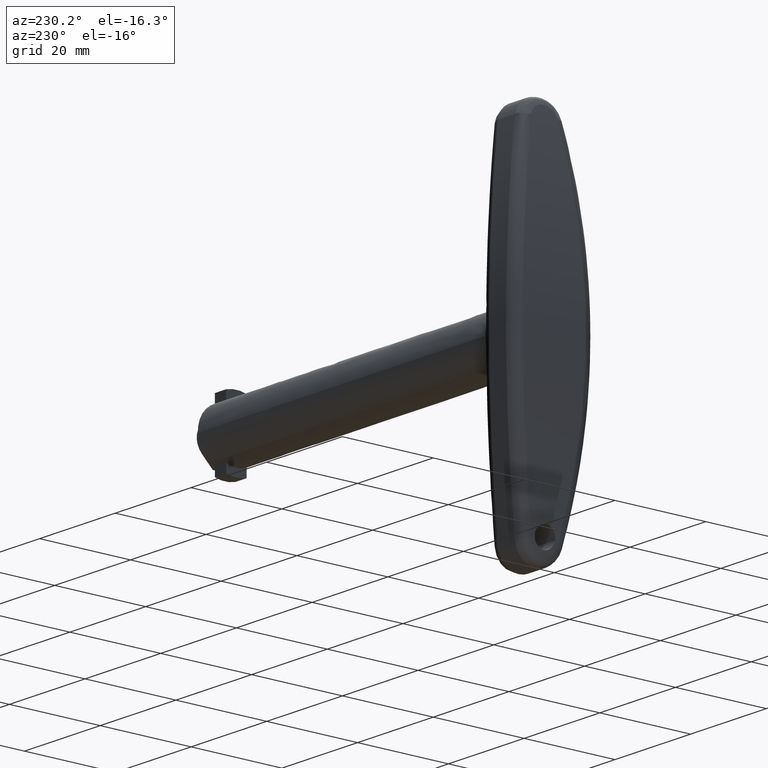
[diagram: clean part render]
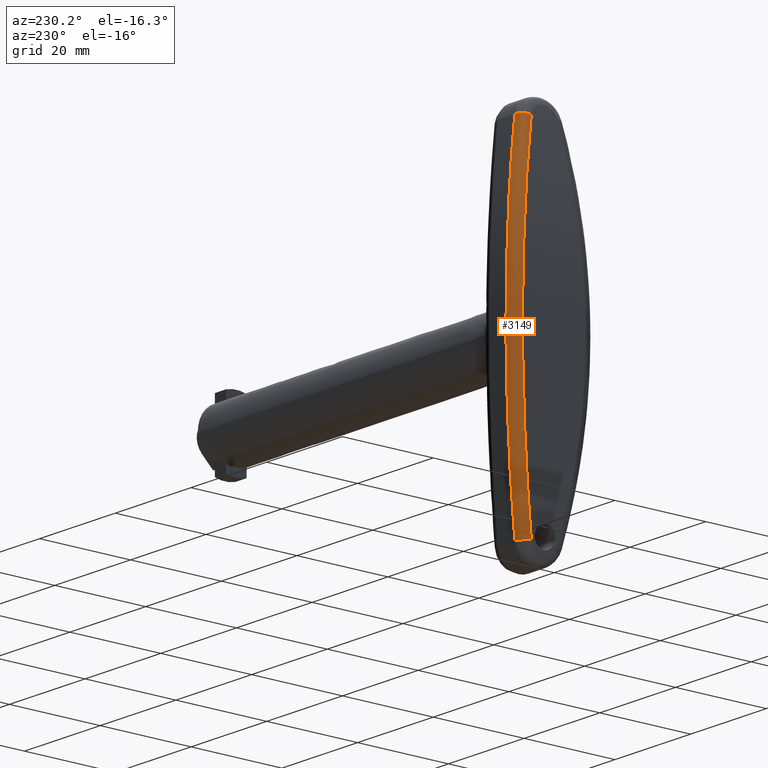
[diagram: same view with one face highlighted and labeled with its STEP entity id]
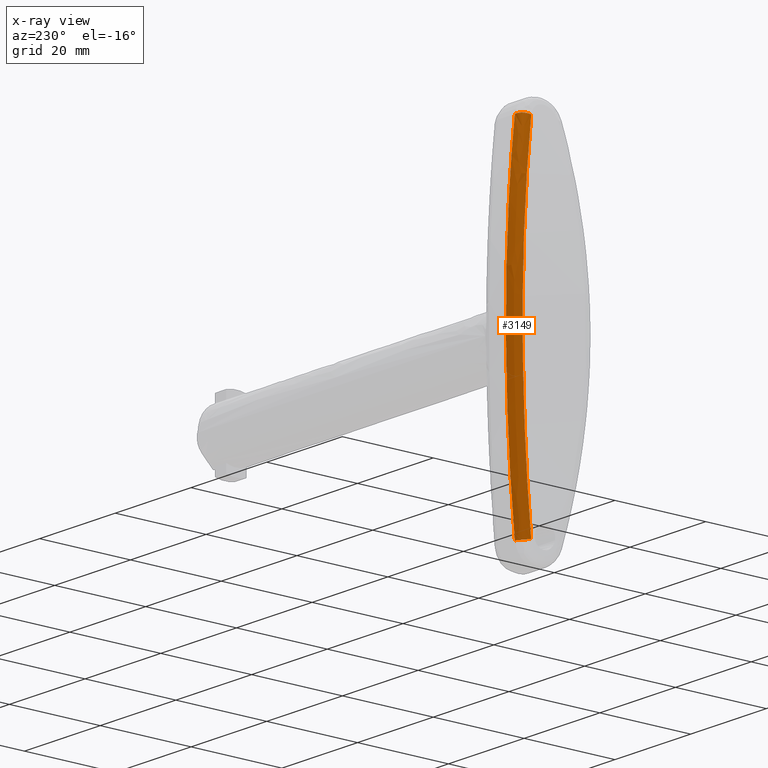
[diagram: x-ray of the same camera — body ghosted, the highlighted face saturated]
A machine part, auxiliary view. The second image highlights one B-rep face of the part: STEP entity #3149.
The next image is the same camera in x-ray: the body ghosted, the highlighted face saturated — about 0% of this face is hidden behind the body in this view.
In plain terms, the highlighted face is a freeform B-spline surface patch.
Its self-contained STEP definition (entity closure, byte-faithful):
#2861=CARTESIAN_POINT('',(4.587307242569950,4.881327646949760,37.582885221583453));
#2862=VERTEX_POINT('',#2861);
#2913=CARTESIAN_POINT('',(2.606615505575070,2.928796588169860,37.426967932449699));
#2914=VERTEX_POINT('',#2913);
#2915=CARTESIAN_POINT('',(4.587307242569950,4.881327646949760,37.582885221583453));
#2916=CARTESIAN_POINT('',(2.664345813842070,4.824418124977975,37.839416585605022));
#2917=CARTESIAN_POINT('',(2.606615505575072,2.928796588169860,37.426967932449713));
#2925=(BOUNDED_CURVE()B_SPLINE_CURVE(2,(#2915,#2916,#2917),.UNSPECIFIED.,.F.,.U.)CURVE()GEOMETRIC_REPRESENTATION_ITEM()QUASI_UNIFORM_CURVE()RATIONAL_B_SPLINE_CURVE((1.0,0.717642516614692,1.0))REPRESENTATION_ITEM(''));
#2926=EDGE_CURVE('',#2862,#2914,#2925,.T.);
#2978=CARTESIAN_POINT('',(4.652311613057488,4.799624579256895,37.951197514785285));
#2979=CARTESIAN_POINT('',(4.635242034576322,4.826995066125379,37.827813112052780));
#2980=CARTESIAN_POINT('',(4.618172479534791,4.854365515409208,37.704428878749461));
#2981=CARTESIAN_POINT('',(3.747656233165555,6.250208624033180,31.412057497362639));
#2982=CARTESIAN_POINT('',(3.103260004991765,7.274182097406575,25.207148228505790));
#2983=CARTESIAN_POINT('',(2.238136571341725,8.646523935799412,12.726564861934762));
#2984=CARTESIAN_POINT('',(2.017368855022051,8.994890352673151,6.450831157284289));
#2985=CARTESIAN_POINT('',(2.012572748579339,9.002471379775628,-3.016992063785608));
#2986=CARTESIAN_POINT('',(2.065416614371321,8.918981936989443,-6.181986466148960));
#2987=CARTESIAN_POINT('',(2.227924277603583,8.661891127516983,-10.943349134112296));
#2988=CARTESIAN_POINT('',(2.296095396623689,8.554007546745510,-12.534727801444001));
#2989=CARTESIAN_POINT('',(2.459572538617826,8.295097259865724,-15.706033040972773));
#2990=CARTESIAN_POINT('',(2.554889541437770,8.144053255578459,-17.287302298935526));
#2991=CARTESIAN_POINT('',(3.098462239395269,7.281819261120778,-25.171950891692966));
#2992=CARTESIAN_POINT('',(3.747432281090680,6.250567729685582,-31.410438672643963));
#2993=CARTESIAN_POINT('',(4.618176958865976,4.854358332831539,-37.704461257338210));
#2994=CARTESIAN_POINT('',(4.635250993250152,4.826980700951782,-37.827877869312701));
#2995=CARTESIAN_POINT('',(4.652325051085327,4.799603031469140,-37.951294650798566));
#2996=CARTESIAN_POINT('',(4.645425838062840,4.799418379735969,37.952117551224013));
#2997=CARTESIAN_POINT('',(4.628355495068346,4.826789630493118,37.828732855203377));
#2998=CARTESIAN_POINT('',(4.611285163810758,4.854160862430862,37.705348244017259));
#2999=CARTESIAN_POINT('',(3.740713813446260,6.250068767767632,31.412845424147346));
#3000=CARTESIAN_POINT('',(3.096274805918793,7.274093741255227,25.207789481064424));
#3001=CARTESIAN_POINT('',(2.231094019430847,8.646505226386662,12.726896435784543));
#3002=CARTESIAN_POINT('',(2.010311305135466,8.994890086618135,6.450999093089136));
#3003=CARTESIAN_POINT('',(2.005514877093845,9.002471508454637,-3.017070603525197));
#3004=CARTESIAN_POINT('',(2.058362298968784,8.918977698337592,-6.182147468346830));
#3005=CARTESIAN_POINT('',(2.220880823053342,8.661873589707660,-10.943632627893605));
#3006=CARTESIAN_POINT('',(2.289056498005817,8.553984437865077,-12.535052012540323));
#3007=CARTESIAN_POINT('',(2.452544532619866,8.295060859688997,-15.706437658965381));
#3008=CARTESIAN_POINT('',(2.547867878358809,8.144009130164712,-17.287746653302509));
#3009=CARTESIAN_POINT('',(3.091476727026985,7.281731281926152,-25.172591359259261));
#3010=CARTESIAN_POINT('',(3.740489848299369,6.250427886291674,-31.411226582448514));
#3011=CARTESIAN_POINT('',(4.611289643258675,4.854153679827812,-37.705380621899572));
#3012=CARTESIAN_POINT('',(4.628364453969956,4.826775265277846,-37.828797611009321));
#3013=CARTESIAN_POINT('',(4.645439276423836,4.799396831899354,-37.952214684994765));
#3014=CARTESIAN_POINT('',(2.716766942400779,4.741663291800003,38.209813520554462));
#3015=CARTESIAN_POINT('',(2.699296576805291,4.769242957293259,38.086371503052462));
#3016=CARTESIAN_POINT('',(2.681822867605746,4.796827901181001,37.962905860330480));
#3017=CARTESIAN_POINT('',(1.786207463194877,6.210694893789169,31.634671237988425));
#3018=CARTESIAN_POINT('',(1.122401675292000,7.249126115959605,25.388994223009870));
#3019=CARTESIAN_POINT('',(0.230980640977665,8.641191677092198,12.821064757337876));
#3020=CARTESIAN_POINT('',(0.003332552328011,8.994814427674740,6.498755552140924));
#3021=CARTESIAN_POINT('',(-0.001611853389848,9.002508102360505,-3.039405837463869));
#3022=CARTESIAN_POINT('',(0.052869656236445,8.917772679194394,-6.227919269700160));
#3023=CARTESIAN_POINT('',(0.220381294889716,8.656892457362501,-11.024151238708820));
#3024=CARTESIAN_POINT('',(0.290648232075790,8.547423613484439,-12.627098534300913));
#3025=CARTESIAN_POINT('',(0.459132554195320,8.284736373863954,-15.821202836082387));
#3026=CARTESIAN_POINT('',(0.557361262090193,8.131500422892254,-17.413712581526596));
#3027=CARTESIAN_POINT('',(1.117460479568848,7.256869489335164,-25.353579283285846));
#3028=CARTESIAN_POINT('',(1.785977712123297,6.211057593660978,-31.633047854826650));
#3029=CARTESIAN_POINT('',(2.681827421128625,4.796820712695553,-37.962938034772947));
#3030=CARTESIAN_POINT('',(2.699305682235571,4.769228582872757,-38.086435840522341));
#3031=CARTESIAN_POINT('',(2.716780598123569,4.741641733993813,-38.209910009641241));
#3032=CARTESIAN_POINT('',(2.658000349492033,2.840811807570274,37.794096851313867));
#3033=CARTESIAN_POINT('',(2.640802834466876,2.867867129816661,37.671225911350440));
#3034=CARTESIAN_POINT('',(2.623605331282516,2.894922433434966,37.548355055985830));
#3035=CARTESIAN_POINT('',(1.746548350273803,4.274718247825586,31.282053471112143));
#3036=CARTESIAN_POINT('',(1.097309106843715,5.286924108004865,25.102835255379397));
#3037=CARTESIAN_POINT('',(0.225683995384770,6.643496402312702,12.673908095389656));
#3038=CARTESIAN_POINT('',(0.003256893001043,6.987860716088323,6.424140529080259));
#3039=CARTESIAN_POINT('',(-0.001575259298500,6.995354643769910,-3.004509111166601));
#3040=CARTESIAN_POINT('',(0.051665772886730,6.912824399741696,-6.156408235017712));
#3041=CARTESIAN_POINT('',(0.215394763620060,6.658687454806597,-10.898068912790924));
#3042=CARTESIAN_POINT('',(0.284078227189806,6.552043428628292,-12.482862366742598));
#3043=CARTESIAN_POINT('',(0.448783974129610,6.296108059833316,-15.641043748860325));
#3044=CARTESIAN_POINT('',(0.544817326886724,6.146799617141086,-17.215768811841841));
#3045=CARTESIAN_POINT('',(1.092475287784495,5.294473499509023,-25.067783692807549));
#3046=CARTESIAN_POINT('',(1.746322717075551,4.275073215500096,-31.280441392001162));
#3047=CARTESIAN_POINT('',(2.623609844092741,2.894915333851269,-37.548387298613441));
#3048=CARTESIAN_POINT('',(2.640811860093159,2.867852930640197,-37.671290396646931));
#3049=CARTESIAN_POINT('',(2.658013887940116,2.840790508792011,-37.794193579320279));
#3050=CARTESIAN_POINT('',(2.657790248506986,2.834015926619938,37.792610590542481));
#3051=CARTESIAN_POINT('',(2.640593729122885,2.861070029296775,37.669741835305892));
#3052=CARTESIAN_POINT('',(2.623397233385553,2.888124094771778,37.546873249024976));
#3053=CARTESIAN_POINT('',(1.746407286035549,4.267832136394294,31.280799238402029));
#3054=CARTESIAN_POINT('',(1.097220185747977,5.279970608885529,25.101821187448895));
#3055=CARTESIAN_POINT('',(0.225665319702743,6.636452638276841,12.673389229065981));
#3056=CARTESIAN_POINT('',(0.003256626576786,6.980793495505952,6.423877782199909));
#3057=CARTESIAN_POINT('',(-0.001575130440903,6.988286918849730,-3.004386230446631));
#3058=CARTESIAN_POINT('',(0.051661532374517,6.905762247361286,-6.156156347311194));
#3059=CARTESIAN_POINT('',(0.215377182524920,6.651642350633283,-10.897624382265096));
#3060=CARTESIAN_POINT('',(0.284055053974275,6.545005477227575,-12.482353628034444));
#3061=CARTESIAN_POINT('',(0.448747438554856,6.289087224321227,-15.640407698720407));
#3062=CARTESIAN_POINT('',(0.544773016015862,6.139788753350900,-17.215069584631699));
#3063=CARTESIAN_POINT('',(1.092386749650214,5.287519505272764,-25.066770940590771));
#3064=CARTESIAN_POINT('',(1.746181667636203,4.268187083985048,-31.279187200849890));
#3065=CARTESIAN_POINT('',(2.623401746045790,2.888116995360080,-37.546905491864536));
#3066=CARTESIAN_POINT('',(2.640602754454915,2.861055830455303,-37.669806321067199));
#3067=CARTESIAN_POINT('',(2.657803786522277,2.833994628330649,-37.792707319307453));
#3075=(BOUNDED_SURFACE()B_SPLINE_SURFACE(3,2,((#2978,#2996,#3014,#3032,#3050),(#2979,#2997,#3015,#3033,#3051),(#2980,#2998,#3016,#3034,#3052),(#2981,#2999,#3017,#3035,#3053),(#2982,#3000,#3018,#3036,#3054),(#2983,#3001,#3019,#3037,#3055),(#2984,#3002,#3020,#3038,#3056),(#2985,#3003,#3021,#3039,#3057),(#2986,#3004,#3022,#3040,#3058),(#2987,#3005,#3023,#3041,#3059),(#2988,#3006,#3024,#3042,#3060),(#2989,#3007,#3025,#3043,#3061),(#2990,#3008,#3026,#3044,#3062),(#2991,#3009,#3027,#3045,#3063),(#2992,#3010,#3028,#3046,#3064),(#2993,#3011,#3029,#3047,#3065),(#2994,#3012,#3030,#3048,#3066),(#2995,#3013,#3031,#3049,#3067)),.UNSPECIFIED.,.F.,.F.,.U.)B_SPLINE_SURFACE_WITH_KNOTS((4,2,2,2,2,2,2,2,4),(3,1,1,3),(0.0,0.383315305182381,19.549080992706379,38.714846680230380,48.297729523992373,53.089170945873377,57.880612367754367,77.046378055278367,77.429693360461414),(0.0,0.016608008960053,3.329862333909634,3.346493491183914),.UNSPECIFIED.)GEOMETRIC_REPRESENTATION_ITEM()RATIONAL_B_SPLINE_SURFACE(((1.002828622992513,1.001414311496256,0.717848557700779,1.001416282769695,1.002832565539390),(1.002829311526478,1.001414655763239,0.717779877338702,1.001416627516518,1.002833255033037),(1.002830000060443,1.001415000030222,0.717711196976626,1.001416972263342,1.002833944526683),(1.002865115293429,1.001432557646715,0.714208498433957,1.001434554351716,1.002869108703432),(1.002891491557002,1.001445745778501,0.711577500655366,1.001447760865177,1.002895521730355),(1.002927026105323,1.001463513052662,0.708032975956748,1.001465552903441,1.002931105806881),(1.002936177776012,1.001468088888006,0.707120108780325,1.001470135116604,1.002940270233208),(1.002936376011617,1.001468188005809,0.707100335038075,1.001470234372558,1.002940468745115),(1.002934190039878,1.001467095019939,0.707318382858742,1.001469139863280,1.002938279726559),(1.002927483412481,1.001463741706240,0.707987360166095,1.001465781875718,1.002931563751436),(1.002924671652075,1.001462335826038,0.708267829587437,1.001464374035993,1.002928748071987),(1.002917938143472,1.001458969071736,0.708939488259944,1.001461002589095,1.002922005178190),(1.002914015942593,1.001457007971296,0.709330722665503,1.001459038755265,1.002918077510530),(1.002891687426897,1.001445843713448,0.711557962889714,1.001447858936627,1.002895717873253),(1.002865122952845,1.001432561476422,0.714207734417228,1.001434558186762,1.002869116373524),(1.002829999907255,1.001414999953627,0.717711212256960,1.001416972186641,1.002833944373281),(1.002829311220101,1.001414655610051,0.717779907899371,1.001416627363116,1.002833254726233),(1.002828622532948,1.001414311266474,0.717848603541782,1.001416282539592,1.002832565079185)))REPRESENTATION_ITEM('')SURFACE());
#3076=CARTESIAN_POINT('',(4.587307242569950,4.881327646949760,-37.582885221583552));
#3077=VERTEX_POINT('',#3076);
#3078=CARTESIAN_POINT('',(2.606615505575065,2.928796588169775,-37.426967932450097));
#3079=VERTEX_POINT('',#3078);
#3080=CARTESIAN_POINT('',(4.587307242569950,4.881327646949760,-37.582885221583552));
#3081=CARTESIAN_POINT('',(2.664345813842153,4.824418124977840,-37.839416585605491));
#3082=CARTESIAN_POINT('',(2.606615505575121,2.928796588169773,-37.426967932450097));
#3090=(BOUNDED_CURVE()B_SPLINE_CURVE(2,(#3080,#3081,#3082),.UNSPECIFIED.,.F.,.U.)CURVE()GEOMETRIC_REPRESENTATION_ITEM()QUASI_UNIFORM_CURVE()RATIONAL_B_SPLINE_CURVE((1.0,0.717642516614698,1.0))REPRESENTATION_ITEM(''));
#3091=EDGE_CURVE('',#3077,#3079,#3090,.T.);
#3092=ORIENTED_EDGE('',*,*,#3091,.T.);
#3093=CARTESIAN_POINT('',(2.606615505575070,2.928796588169860,37.426967932449699));
#3094=CARTESIAN_POINT('',(2.176580122496997,3.605324471513702,34.354621362961623));
#3095=CARTESIAN_POINT('',(1.799280826191051,4.196465732919731,31.273427580079890));
#3096=CARTESIAN_POINT('',(1.150657374959544,5.210447274256960,25.093505295961290));
#3097=CARTESIAN_POINT('',(0.879332395163121,5.633284748801838,21.994776625571419));
#3098=CARTESIAN_POINT('',(0.443509712617336,6.311576748829639,15.779812255855759));
#3099=CARTESIAN_POINT('',(0.279011001785348,6.567030776318722,12.663576567445510));
#3100=CARTESIAN_POINT('',(0.058070808972797,6.909979107498621,6.413496883997016));
#3101=CARTESIAN_POINT('',(0.001628065237609,6.997475156555812,3.279653078535378));
#3102=CARTESIAN_POINT('',(-0.001558663524553,7.002417213577716,-3.005876079472131));
#3103=CARTESIAN_POINT('',(0.051695752763580,6.919867384794928,-6.157561046862739));
#3104=CARTESIAN_POINT('',(0.188135290426167,6.708091596660837,-10.108551809873131));
#3105=CARTESIAN_POINT('',(0.218917953623463,6.660302899628078,-10.899319551779641));
#3106=CARTESIAN_POINT('',(0.270362305122949,6.580413558671714,-12.086331047582590));
#3107=CARTESIAN_POINT('',(0.288382602817246,6.552425675971498,-12.481988691548070));
#3108=CARTESIAN_POINT('',(0.326129978405803,6.493789729301482,-13.272544152367590));
#3109=CARTESIAN_POINT('',(0.424789018870042,6.340512140330922,-15.247578724763221));
#3110=CARTESIAN_POINT('',(0.544823690758229,6.153890150443056,-17.215863529199840));
#3111=CARTESIAN_POINT('',(0.873408237113022,5.642517642710867,-21.926914823905140));
#3112=CARTESIAN_POINT('',(1.146453136986397,5.217011930385508,-25.050514280036069));
#3113=CARTESIAN_POINT('',(1.797984357204266,4.198500169259796,-31.263984577441398));
#3114=CARTESIAN_POINT('',(2.176472866981173,3.605493204948046,-34.353855086210963));
#3115=CARTESIAN_POINT('',(2.606615505575101,2.928796588169763,-37.426967932450097));
#3116=B_SPLINE_CURVE_WITH_KNOTS('',3,(#3093,#3094,#3095,#3096,#3097,#3098,#3099,#3100,#3101,#3102,#3103,#3104,#3105,#3106,#3107,#3108,#3109,#3110,#3111,#3112,#3113,#3114,#3115),.UNSPECIFIED.,.F.,.U.,(4,2,2,2,2,2,2,2,1,2,2,4),(0.0,0.125000000000000,0.250000000000000,0.375000000000000,0.500000000000000,0.625000000000000,0.656250000000000,0.671875000000000,0.687500000000000,0.750000000000000,0.875000000000000,1.0),.UNSPECIFIED.);
#3117=EDGE_CURVE('',#2914,#3079,#3116,.T.);
#3118=ORIENTED_EDGE('',*,*,#3117,.F.);
#3119=ORIENTED_EDGE('',*,*,#2926,.F.);
#3120=CARTESIAN_POINT('',(4.587307242569950,4.881327646949760,-37.582885221583552));
#3121=CARTESIAN_POINT('',(4.160375917421893,5.565874131558730,-34.497151281972037));
#3122=CARTESIAN_POINT('',(3.784700601801499,6.165780264262027,-31.394523355082470));
#3123=CARTESIAN_POINT('',(3.137997540489910,7.196164564351212,-25.155264355093930));
#3124=CARTESIAN_POINT('',(2.866967602854181,7.626643702780317,-22.018633621421859));
#3125=CARTESIAN_POINT('',(2.540803072471311,8.144000824782474,-17.287826503160652));
#3126=CARTESIAN_POINT('',(2.445481579101441,8.295047227436081,-15.706578539503919));
#3127=CARTESIAN_POINT('',(2.343304058850765,8.456867967296562,-13.724574664001880));
#3128=CARTESIAN_POINT('',(2.323717346495053,8.487882497342692,-13.327901649260591));
#3129=CARTESIAN_POINT('',(2.286247416004460,8.547205549036942,-12.534009624435120));
#3130=CARTESIAN_POINT('',(2.268359543261744,8.575521437568877,-12.136680581450410));
#3131=CARTESIAN_POINT('',(2.217293389980615,8.656346806644608,-10.944654629135711));
#3132=CARTESIAN_POINT('',(2.186737336790614,8.704694934099461,-10.150548658029340));
#3133=CARTESIAN_POINT('',(2.051303617022395,8.918947619847323,-6.182890222874409));
#3134=CARTESIAN_POINT('',(1.998446826180211,9.002454969651550,-3.017946152157592));
#3135=CARTESIAN_POINT('',(2.001622609857247,8.997435278724760,3.293955814621829));
#3136=CARTESIAN_POINT('',(2.057656782489932,8.908904001457554,6.440913318640919));
#3137=CARTESIAN_POINT('',(2.276978593043344,8.561928142466915,12.717077689774950));
#3138=CARTESIAN_POINT('',(2.440267493442212,8.303481772654891,15.846284363806420));
#3139=CARTESIAN_POINT('',(2.872871367115427,7.617265843107942,22.087048876646989));
#3140=CARTESIAN_POINT('',(3.142187350746704,7.189496764503354,25.198606704000049));
#3141=CARTESIAN_POINT('',(3.785992725853347,6.163713696854965,31.404044607517221));
#3142=CARTESIAN_POINT('',(4.160482946297318,5.565702520257107,34.497924855176677));
#3143=CARTESIAN_POINT('',(4.587307242569950,4.881327646949760,37.582885221583453));
#3144=B_SPLINE_CURVE_WITH_KNOTS('',3,(#3120,#3121,#3122,#3123,#3124,#3125,#3126,#3127,#3128,#3129,#3130,#3131,#3132,#3133,#3134,#3135,#3136,#3137,#3138,#3139,#3140,#3141,#3142,#3143),.UNSPECIFIED.,.F.,.U.,(4,2,2,2,2,2,2,2,2,2,2,4),(0.0,0.125000000000000,0.249999999999999,0.312499999999999,0.328124999999999,0.343749999999999,0.374999999999999,0.499999999999999,0.624999999999999,0.750000000000000,0.875000000000000,1.0),.UNSPECIFIED.);
#3145=EDGE_CURVE('',#3077,#2862,#3144,.T.);
#3146=ORIENTED_EDGE('',*,*,#3145,.F.);
#3147=EDGE_LOOP('',(#3092,#3118,#3119,#3146));
#3148=FACE_OUTER_BOUND('',#3147,.T.);
#3149=ADVANCED_FACE('',(#3148),#3075,.T.);